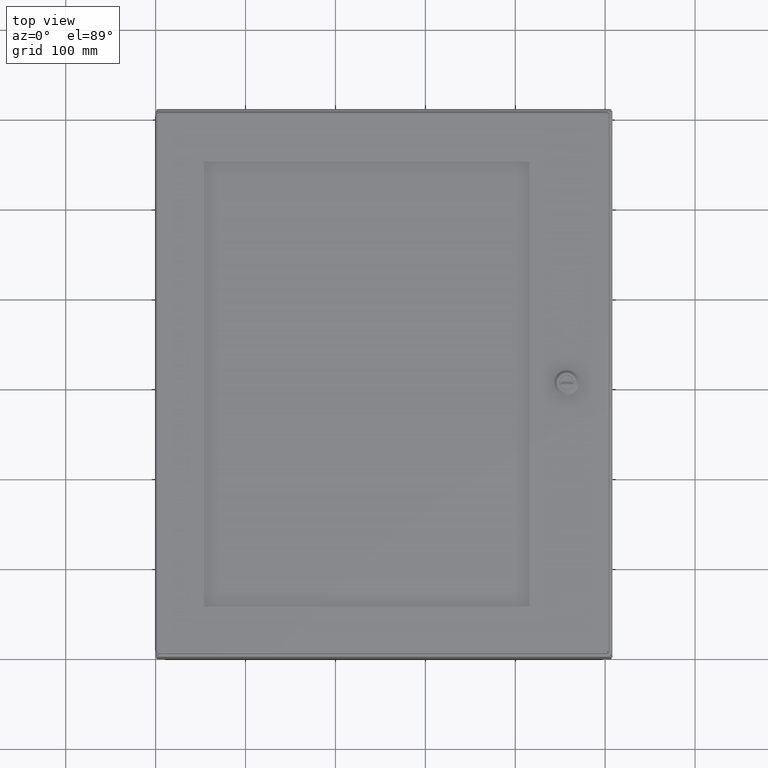
[diagram: clean part render]
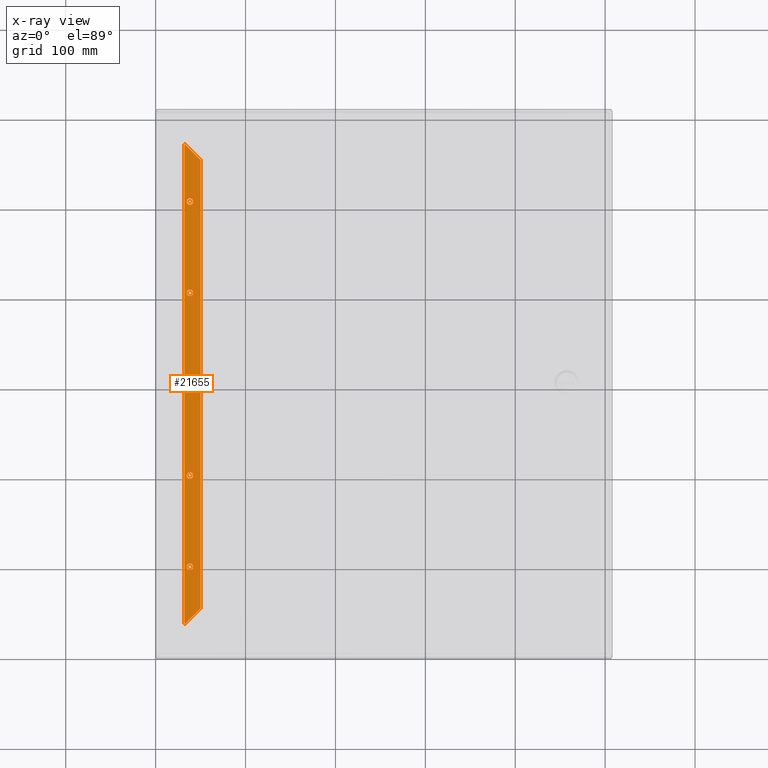
[diagram: x-ray — body ghosted, one internal face saturated and labeled with its STEP entity id]
A machine part, top view, then the same camera in x-ray: the body is ghosted and one INTERNAL B-rep face — a face not visible from any outside direction — is saturated and labeled: STEP entity #21655.
In plain terms, the highlighted planar face has unit normal (-0, 0, -1).
Its self-contained STEP definition (entity closure, byte-faithful):
#21211=CARTESIAN_POINT('',(0.483124999999997,14.562500000000000,0.0));
#21212=VERTEX_POINT('',#21211);
#21213=CARTESIAN_POINT('',(0.342499999999997,14.562500000000000,0.0));
#21214=DIRECTION('',(0.0,0.0,1.0));
#21215=DIRECTION('',(-1.0,0.0,0.0));
#21216=AXIS2_PLACEMENT_3D('',#21213,#21214,#21215);
#21217=CIRCLE('',#21216,0.140625000000000);
#21218=EDGE_CURVE('',#21212,#21212,#21217,.T.);
#21239=CARTESIAN_POINT('',(0.483124999999998,10.562499999999998,0.0));
#21240=VERTEX_POINT('',#21239);
#21241=CARTESIAN_POINT('',(0.342499999999998,10.562499999999998,0.0));
#21242=DIRECTION('',(0.0,0.0,1.0));
#21243=DIRECTION('',(-1.0,0.0,0.0));
#21244=AXIS2_PLACEMENT_3D('',#21241,#21242,#21243);
#21245=CIRCLE('',#21244,0.140625000000000);
#21246=EDGE_CURVE('',#21240,#21240,#21245,.T.);
#21267=CARTESIAN_POINT('',(0.483124999999998,6.562499999999997,0.0));
#21268=VERTEX_POINT('',#21267);
#21269=CARTESIAN_POINT('',(0.342499999999998,6.562499999999997,0.0));
#21270=DIRECTION('',(0.0,0.0,1.0));
#21271=DIRECTION('',(-1.0,0.0,0.0));
#21272=AXIS2_PLACEMENT_3D('',#21269,#21270,#21271);
#21273=CIRCLE('',#21272,0.140625000000000);
#21274=EDGE_CURVE('',#21268,#21268,#21273,.T.);
#21429=CARTESIAN_POINT('',(0.105249999999990,21.082249999999998,0.0));
#21430=VERTEX_POINT('',#21429);
#21479=CARTESIAN_POINT('',(0.105250000000000,0.042750000000001,0.0));
#21480=VERTEX_POINT('',#21479);
#21560=CARTESIAN_POINT('',(0.105250000000000,0.042749999999998,0.0));
#21561=DIRECTION('',(0.0,1.0,0.0));
#21562=VECTOR('',#21561,21.039500000000000);
#21563=LINE('',#21560,#21562);
#21564=EDGE_CURVE('',#21480,#21430,#21563,.T.);
#21576=CARTESIAN_POINT('',(0.812500000000002,0.750000000000000,0.0));
#21577=VERTEX_POINT('',#21576);
#21578=CARTESIAN_POINT('',(0.105250000000000,0.042750000000001,0.0));
#21579=DIRECTION('',(0.707106781186549,0.707106781186546,0.0));
#21580=VECTOR('',#21579,1.000202541988372);
#21581=LINE('',#21578,#21580);
#21582=EDGE_CURVE('',#21480,#21577,#21581,.T.);
#21601=CARTESIAN_POINT('',(0.393028545889685,15.734530415575176,0.0));
#21602=DIRECTION('',(0.0,0.0,1.0));
#21603=DIRECTION('',(1.0,0.0,0.0));
#21604=AXIS2_PLACEMENT_3D('',#21601,#21602,#21603);
#21605=PLANE('',#21604);
#21606=ORIENTED_EDGE('',*,*,#21564,.T.);
#21607=CARTESIAN_POINT('',(0.812499999999993,20.375000000000004,0.0));
#21608=VERTEX_POINT('',#21607);
#21609=CARTESIAN_POINT('',(0.812499999999993,20.375000000000004,0.0));
#21610=DIRECTION('',(-0.707106781186549,0.707106781186546,0.0));
#21611=VECTOR('',#21610,1.000202541988372);
#21612=LINE('',#21609,#21611);
#21613=EDGE_CURVE('',#21608,#21430,#21612,.T.);
#21614=ORIENTED_EDGE('',*,*,#21613,.F.);
#21615=CARTESIAN_POINT('',(0.812500000000002,0.750000000000000,0.0));
#21616=DIRECTION('',(0.0,1.0,0.0));
#21617=VECTOR('',#21616,19.625000000000004);
#21618=LINE('',#21615,#21617);
#21619=EDGE_CURVE('',#21577,#21608,#21618,.T.);
#21620=ORIENTED_EDGE('',*,*,#21619,.F.);
#21621=ORIENTED_EDGE('',*,*,#21582,.F.);
#21622=EDGE_LOOP('',(#21606,#21614,#21620,#21621));
#21623=FACE_OUTER_BOUND('',#21622,.T.);
#21624=ORIENTED_EDGE('',*,*,#21218,.T.);
#21625=EDGE_LOOP('',(#21624));
#21626=FACE_BOUND('',#21625,.T.);
#21627=ORIENTED_EDGE('',*,*,#21246,.T.);
#21628=EDGE_LOOP('',(#21627));
#21629=FACE_BOUND('',#21628,.T.);
#21630=ORIENTED_EDGE('',*,*,#21274,.T.);
#21631=EDGE_LOOP('',(#21630));
#21632=FACE_BOUND('',#21631,.T.);
#21633=CARTESIAN_POINT('',(0.483124999999997,18.562500000000000,0.0));
#21634=VERTEX_POINT('',#21633);
#21635=CARTESIAN_POINT('',(0.342499999999997,18.562500000000000,0.0));
#21636=DIRECTION('',(0.0,0.0,1.0));
#21637=DIRECTION('',(-1.0,0.0,0.0));
#21638=AXIS2_PLACEMENT_3D('',#21635,#21636,#21637);
#21639=CIRCLE('',#21638,0.140625000000000);
#21640=EDGE_CURVE('',#21634,#21634,#21639,.T.);
#21641=ORIENTED_EDGE('',*,*,#21640,.T.);
#21642=EDGE_LOOP('',(#21641));
#21643=FACE_BOUND('',#21642,.T.);
#21644=CARTESIAN_POINT('',(0.483124999999998,2.562499999999997,0.0));
#21645=VERTEX_POINT('',#21644);
#21646=CARTESIAN_POINT('',(0.342499999999998,2.562499999999997,0.0));
#21647=DIRECTION('',(0.0,0.0,1.0));
#21648=DIRECTION('',(-1.0,0.0,0.0));
#21649=AXIS2_PLACEMENT_3D('',#21646,#21647,#21648);
#21650=CIRCLE('',#21649,0.140625000000000);
#21651=EDGE_CURVE('',#21645,#21645,#21650,.T.);
#21652=ORIENTED_EDGE('',*,*,#21651,.T.);
#21653=EDGE_LOOP('',(#21652));
#21654=FACE_BOUND('',#21653,.T.);
#21655=ADVANCED_FACE('',(#21623,#21626,#21629,#21632,#21643,#21654),#21605,.F.);